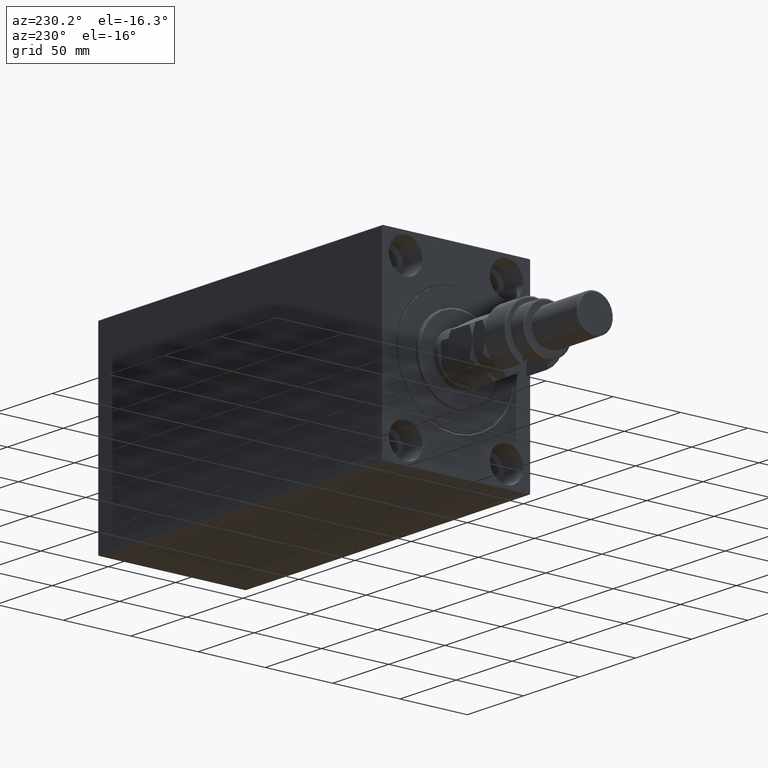
[diagram: clean part render]
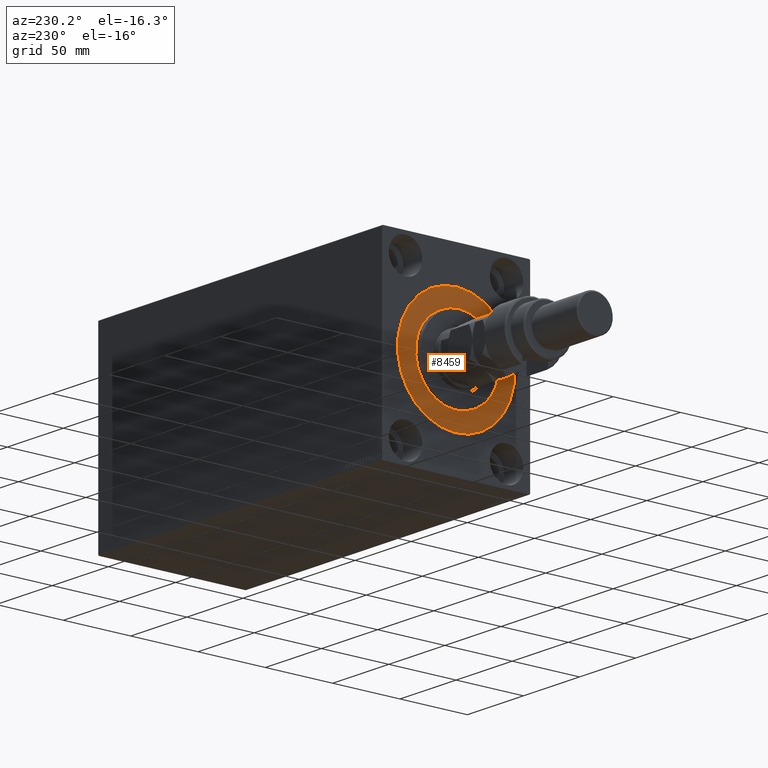
[diagram: same view with one face highlighted and labeled with its STEP entity id]
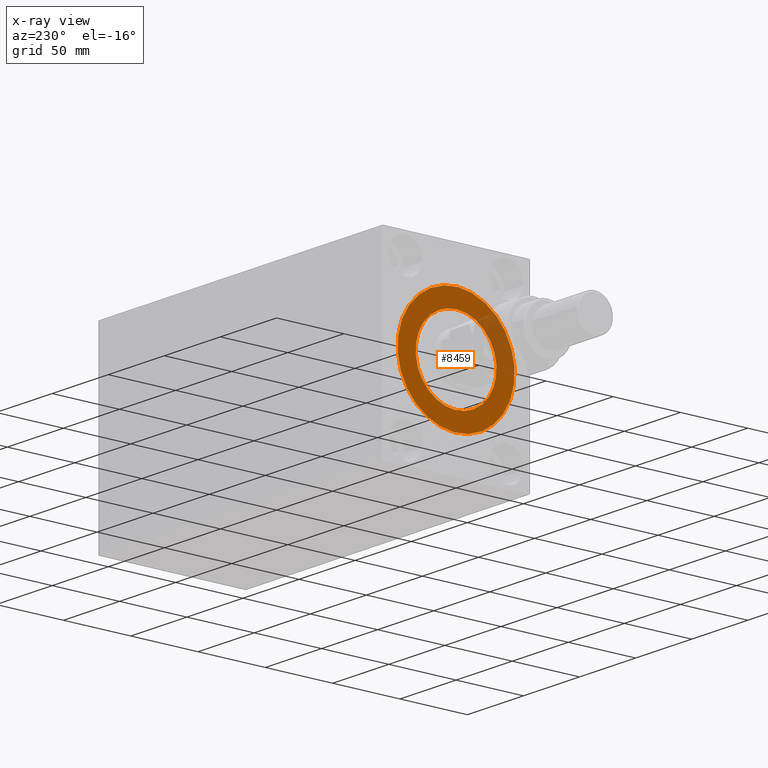
[diagram: x-ray of the same camera — body ghosted, the highlighted face saturated]
A machine part, auxiliary view. The second image highlights one B-rep face of the part: STEP entity #8459.
The next image is the same camera in x-ray: the body ghosted, the highlighted face saturated — about 17% of this face is hidden behind the body in this view.
In plain terms, the highlighted planar face has unit normal (1, 0, -0).
Its self-contained STEP definition (entity closure, byte-faithful):
#149 = VERTEX_POINT ( 'NONE', #40311 ) ;
#612 = CARTESIAN_POINT ( 'NONE',  ( 0.000000000000000000, 0.000000000000000000, 0.000000000000000000 ) ) ;
#936 = ORIENTED_EDGE ( 'NONE', *, *, #5763, .F. ) ;
#2143 = ORIENTED_EDGE ( 'NONE', *, *, #12175, .F. ) ;
#3023 = AXIS2_PLACEMENT_3D ( 'NONE', #612, #36957, #36247 ) ;
#3845 = FACE_OUTER_BOUND ( 'NONE', #31347, .T. ) ;
#5050 = EDGE_CURVE ( 'NONE', #21393, #35605, #30690, .T. ) ;
#5763 = EDGE_CURVE ( 'NONE', #149, #45894, #18633, .T. ) ;
#8459 = ADVANCED_FACE ( 'NONE', ( #29788, #3845 ), #11640, .F. ) ;
#10358 = CARTESIAN_POINT ( 'NONE',  ( 0.000000000000000000, 0.000000000000000000, 0.000000000000000000 ) ) ;
#10834 = DIRECTION ( 'NONE',  ( 1.000000000000000000, -0.000000000000000000, 0.000000000000000000 ) ) ;
#11640 = PLANE ( 'NONE',  #30063 ) ;
#12175 = EDGE_CURVE ( 'NONE', #45894, #149, #33793, .T. ) ;
#13435 = AXIS2_PLACEMENT_3D ( 'NONE', #33875, #34106, #30325 ) ;
#15108 = CIRCLE ( 'NONE', #3023, 30.00000000000000000 ) ;
#17109 = AXIS2_PLACEMENT_3D ( 'NONE', #44855, #40618, #34006 ) ;
#17635 = ORIENTED_EDGE ( 'NONE', *, *, #37722, .F. ) ;
#18240 = CARTESIAN_POINT ( 'NONE',  ( 0.000000000000000000, 0.000000000000000000, 0.000000000000000000 ) ) ;
#18633 = CIRCLE ( 'NONE', #17109, 43.50000000000000000 ) ;
#20966 = CARTESIAN_POINT ( 'NONE',  ( 0.000000000000000000, 3.673940397442059178E-15, -30.00000000000000000 ) ) ;
#21393 = VERTEX_POINT ( 'NONE', #38851 ) ;
#25212 = DIRECTION ( 'NONE',  ( 0.000000000000000000, 0.000000000000000000, -1.000000000000000000 ) ) ;
#26280 = CARTESIAN_POINT ( 'NONE',  ( 0.000000000000000000, 0.000000000000000000, -43.50000000000000000 ) ) ;
#27051 = ORIENTED_EDGE ( 'NONE', *, *, #5050, .F. ) ;
#28423 = AXIS2_PLACEMENT_3D ( 'NONE', #10358, #10834, #25212 ) ;
#29323 = DIRECTION ( 'NONE',  ( -1.000000000000000000, 0.000000000000000000, 0.000000000000000000 ) ) ;
#29788 = FACE_BOUND ( 'NONE', #41085, .T. ) ;
#30063 = AXIS2_PLACEMENT_3D ( 'NONE', #18240, #29323, #32625 ) ;
#30325 = DIRECTION ( 'NONE',  ( 0.000000000000000000, 0.000000000000000000, 1.000000000000000000 ) ) ;
#30690 = CIRCLE ( 'NONE', #28423, 30.00000000000000000 ) ;
#31347 = EDGE_LOOP ( 'NONE', ( #2143, #936 ) ) ;
#32625 = DIRECTION ( 'NONE',  ( 0.000000000000000000, 0.000000000000000000, 1.000000000000000000 ) ) ;
#33793 = CIRCLE ( 'NONE', #13435, 43.50000000000000000 ) ;
#33875 = CARTESIAN_POINT ( 'NONE',  ( 0.000000000000000000, 0.000000000000000000, 0.000000000000000000 ) ) ;
#34006 = DIRECTION ( 'NONE',  ( 0.000000000000000000, 0.000000000000000000, 1.000000000000000000 ) ) ;
#34106 = DIRECTION ( 'NONE',  ( -1.000000000000000000, 0.000000000000000000, 0.000000000000000000 ) ) ;
#35605 = VERTEX_POINT ( 'NONE', #20966 ) ;
#36247 = DIRECTION ( 'NONE',  ( 0.000000000000000000, 0.000000000000000000, -1.000000000000000000 ) ) ;
#36957 = DIRECTION ( 'NONE',  ( 1.000000000000000000, -0.000000000000000000, 0.000000000000000000 ) ) ;
#37722 = EDGE_CURVE ( 'NONE', #35605, #21393, #15108, .T. ) ;
#38851 = CARTESIAN_POINT ( 'NONE',  ( 0.000000000000000000, 0.000000000000000000, 30.00000000000000000 ) ) ;
#40311 = CARTESIAN_POINT ( 'NONE',  ( 0.000000000000000000, 5.327213576290986044E-15, 43.50000000000000000 ) ) ;
#40618 = DIRECTION ( 'NONE',  ( -1.000000000000000000, 0.000000000000000000, 0.000000000000000000 ) ) ;
#41085 = EDGE_LOOP ( 'NONE', ( #27051, #17635 ) ) ;
#44855 = CARTESIAN_POINT ( 'NONE',  ( 0.000000000000000000, 0.000000000000000000, 0.000000000000000000 ) ) ;
#45894 = VERTEX_POINT ( 'NONE', #26280 ) ;